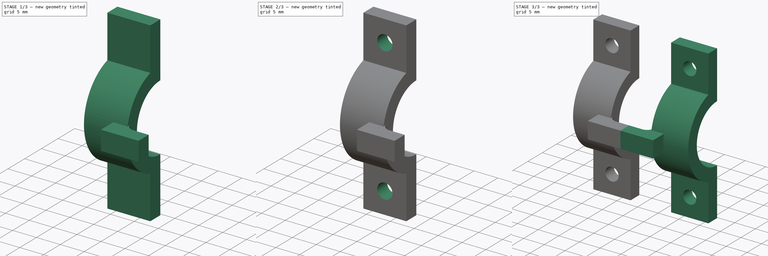
[diagram: build sequence overview — one tinted view per stage of 3, left to right]
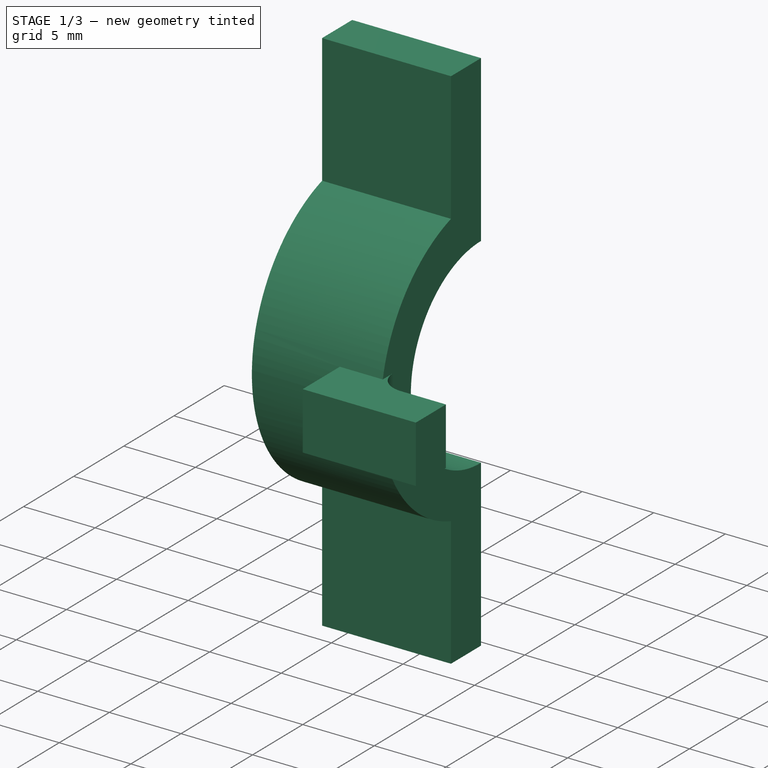
[diagram: stage 1 of 3 — iso view after this stage's code; geometry added in this stage tinted green]
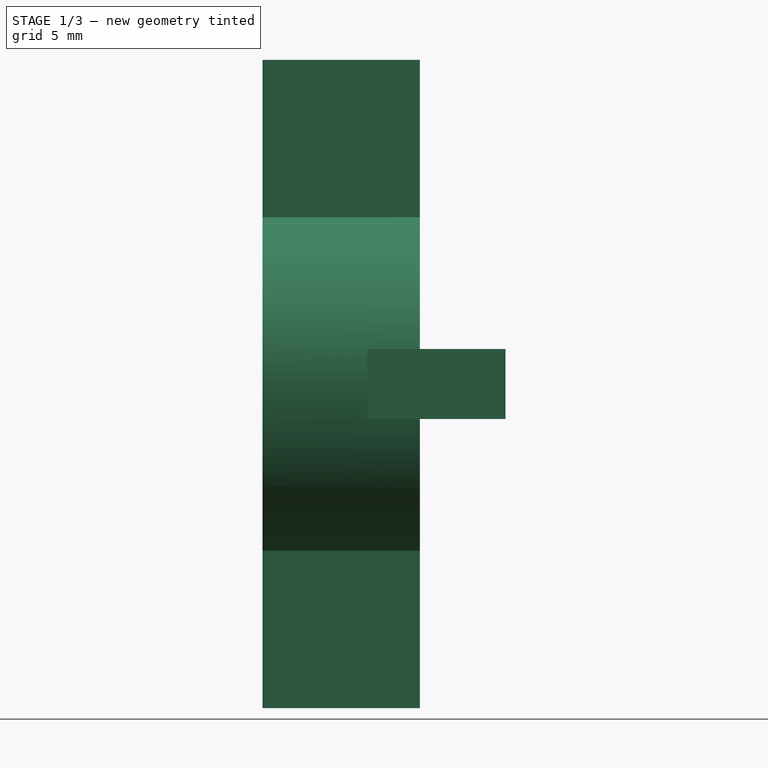
[diagram: stage 1 of 3 — front view after this stage's code; geometry added in this stage tinted green]
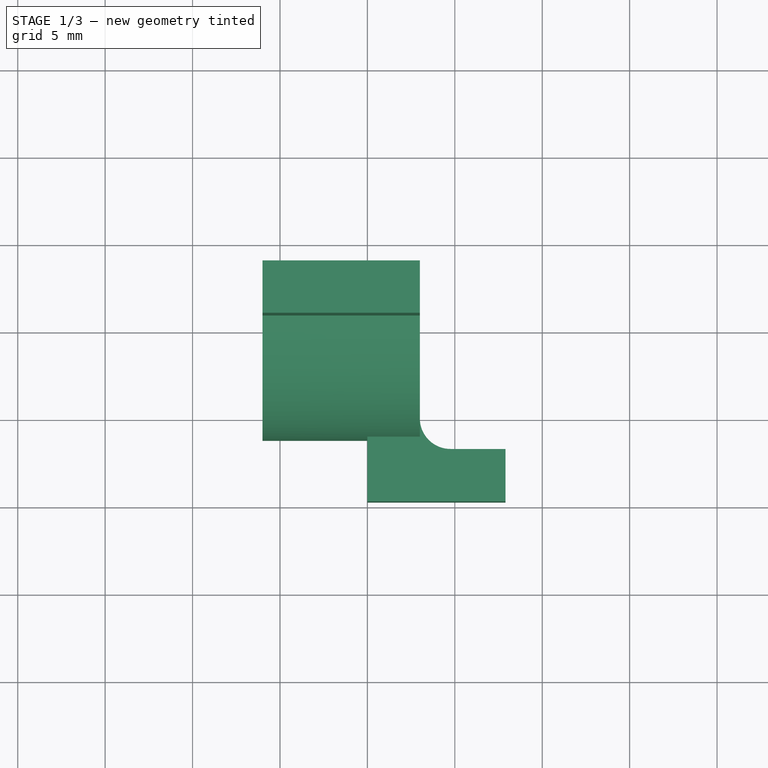
[diagram: stage 1 of 3 — top view after this stage's code; geometry added in this stage tinted green]
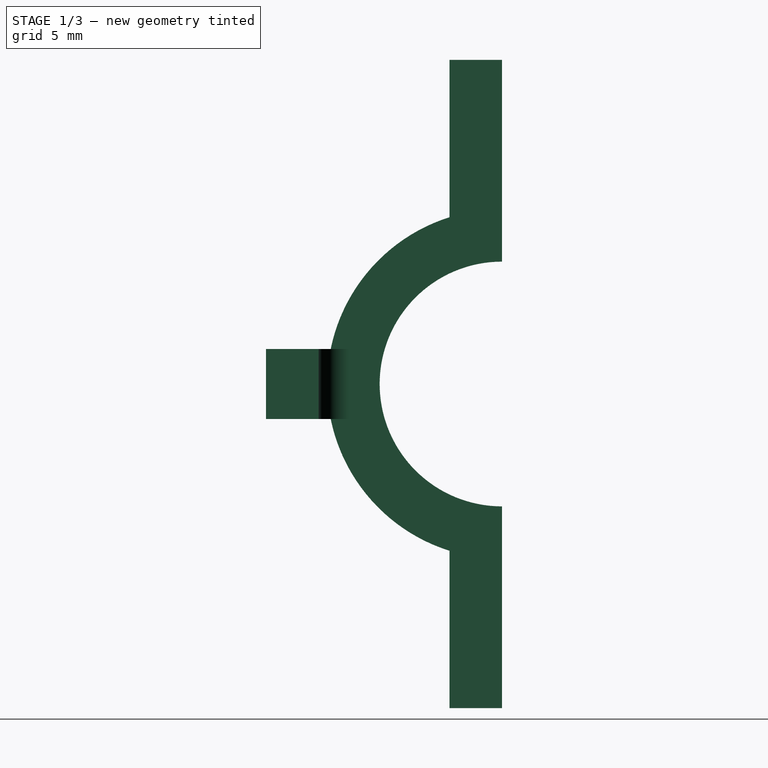
[diagram: stage 1 of 3 — right view after this stage's code; geometry added in this stage tinted green]
FCSTD DOCUMENT  (FreeCAD 0.14R3700 (Git))
Label: wire brace_lowerclamp
License: CC-BY 3.0
LicenseURL: http://creativecommons.org/licenses/by/3.0/
objects: Drawing::FeatureViewPart×4, Sketcher::SketchObject×3, PartDesign::Pad×2, PartDesign::Pocket×1, Part::Mirroring×1, Part::Fuse×1, Drawing::FeaturePage×1
note: 11 computed .brp shape members not serialized (recipe doc carries the construction recipe); baked Part::Feature solids carry a one-line shape summary decoded from their .brp

FEATURE [Sketcher::SketchObject] Sketch
  sketch-geometry (8):
    g0: ArcOfCircle CenterX=4.75 CenterY=4.75 CenterZ=0 NormalX=0 NormalY=0 NormalZ=1 Radius=1.75 StartAngle=3.14159 EndAngle=4.7124
    g1: LineSegment StartX=4.75001 StartY=3 StartZ=0 EndX=7.90001 EndY=3 EndZ=0
    g2: LineSegment StartX=3 StartY=6.5 StartZ=0 EndX=3 EndY=4.75 EndZ=0
    g3: LineSegment StartX=0 StartY=4.75 StartZ=0 EndX=0 EndY=6.5 EndZ=0
    g4: LineSegment StartX=7.90001 StartY=0 StartZ=0 EndX=0 EndY=0 EndZ=0
    g5: LineSegment StartX=0 StartY=0 StartZ=0 EndX=0 EndY=6.5 EndZ=0
    g6: LineSegment StartX=0 StartY=6.5 StartZ=0 EndX=3 EndY=6.5 EndZ=0
    g7: LineSegment StartX=7.90001 StartY=3 StartZ=0 EndX=7.90001 EndY=0 EndZ=0
  constraints (25):
    c: Tangent(g0,g1)
    c: Coincident(g0,g1)
    c: Horizontal(g1)
    c: Vertical(g2)
    c: Vertical(g3)
    c: DistanceY(g3,g0) = 0
    c: Coincident(g0,g2)
    c: DistanceY(g0,g0) = 0
    c: DistanceY(g2,g0) = -1.75
    c: DistanceX(g-1,g3) = 0
    c: Coincident(g4,g5)
    c: Horizontal(g4)
    c: Vertical(g5)
    c: Coincident(g3,g5)
    c: Horizontal(g6)
    c: Coincident(g3,g6)
    c: Coincident(g2,g6)
    c: DistanceX(g3,g2) = 3
    c: DistanceY(g0,g4) = -3
    c: Coincident(g4,g-1)
    c: Vertical(g7)
    c: Coincident(g4,g7)
    c: Coincident(g1,g7)
    c: DistanceX(g0,g1) = 3.15
    c: Radius(g0) = 1.75
FEATURE [PartDesign::Pad] Pad
  Length = 4
  Length2 = 20
  Sketch = -> Sketch
  Type = 0
FEATURE [Sketcher::SketchObject] Sketch002
  ExternalGeometry = -> [Pad]
  Placement = pos=(0,0,0) rot=(0.57735,-0.57735,-0.57735;2.0944rad)
  Support = -> Pad [Face8]
  sketch-geometry (8):
    g0: LineSegment StartX=-10.5 StartY=20.5394 StartZ=0 EndX=-10.5 EndY=11.5394 EndZ=0
    g1: LineSegment StartX=-10.5 StartY=-16.5394 StartZ=0 EndX=-13.5 EndY=-16.5394 EndZ=0
    g2: LineSegment StartX=-13.5 StartY=20.5394 StartZ=0 EndX=-13.5 EndY=9 EndZ=0
    g3: LineSegment StartX=-13.5 StartY=20.5394 StartZ=0 EndX=-10.5 EndY=20.5394 EndZ=0
    g4: ArcOfCircle CenterX=-13.5 CenterY=2 CenterZ=0 NormalX=0 NormalY=0 NormalZ=1 Radius=10 StartAngle=5.01708 EndAngle=7.54929
    g5: ArcOfCircle CenterX=-13.5 CenterY=2 CenterZ=0 NormalX=0 NormalY=0 NormalZ=1 Radius=7 StartAngle=4.71239 EndAngle=7.85398
    g6: LineSegment StartX=-10.5 StartY=-7.53939 StartZ=0 EndX=-10.5 EndY=-16.5394 EndZ=0
    g7: LineSegment StartX=-13.5 StartY=-5 StartZ=0 EndX=-13.5 EndY=-16.5394 EndZ=0
  constraints (25):
    c: Coincident(g3,g0)
    c: Coincident(g6,g1)
    c: Horizontal(g1)
    c: Vertical(g0)
    c: Vertical(g2)
    c: Coincident(g3,g2)
    c: Coincident(g1,g7)
    c: Coincident(g4,g6)
    c: Coincident(g2,g5)
    c: Coincident(g7,g5)
    c: Tangent(g2,g7)
    c: PointOnObject(g4,g0)
    c: Vertical(g6)
    c: Equal(g3,g1)
    c: Radius(g5) = 7
    c: Radius(g4) = 10
    c: Coincident(g0,g4)
    c: DistanceY(g1,g4) = 9
    c: DistanceY(g0,g0) = 9
    c: Horizontal(g3)
    c: Coincident(g4,g5)
    c: DistanceX(g2,g0) = 3
    c: Tangent(g5,g-3)
    c: DistanceX(g4,g5) = 0
    c: DistanceY(g-1,g4) = 2
FEATURE [PartDesign::Pad] Pad001
  Length = 6
  Length2 = 3
  Sketch = -> Sketch002
  Type = 4
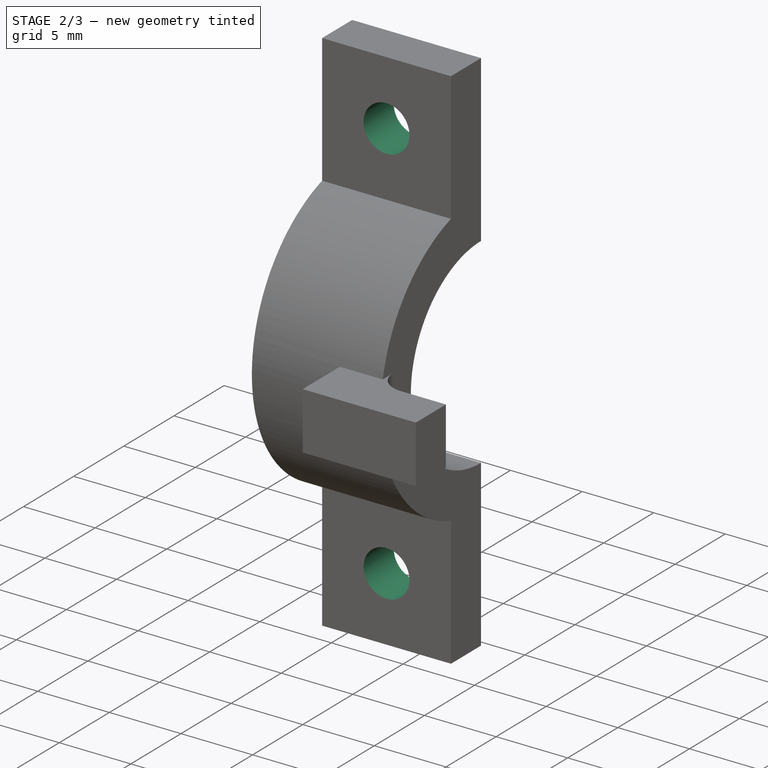
[diagram: stage 2 of 3 — iso view after this stage's code; geometry added in this stage tinted green]
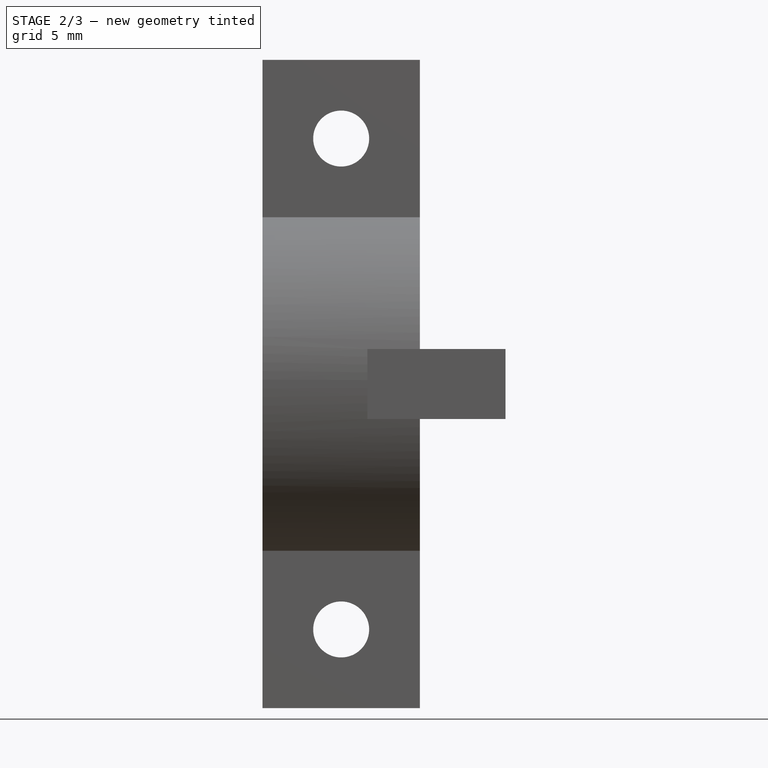
[diagram: stage 2 of 3 — front view after this stage's code; geometry added in this stage tinted green]
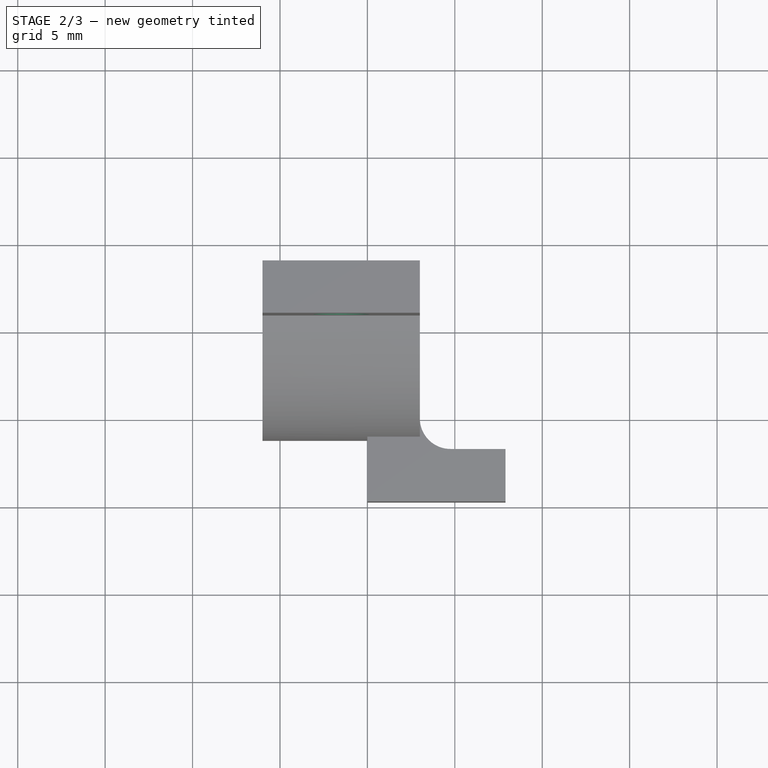
[diagram: stage 2 of 3 — top view after this stage's code; geometry added in this stage tinted green]
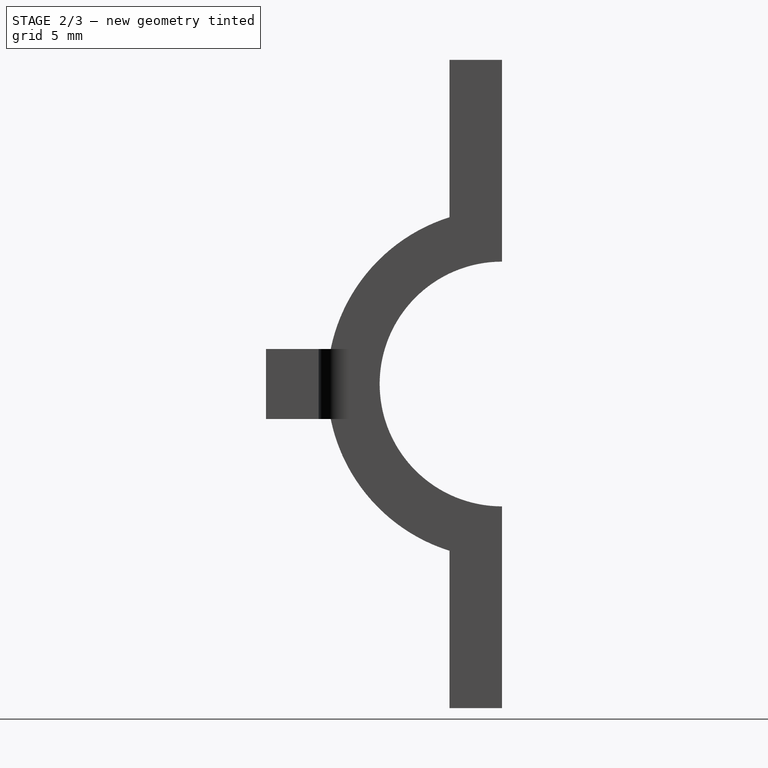
[diagram: stage 2 of 3 — right view after this stage's code; geometry added in this stage tinted green]
FEATURE [Sketcher::SketchObject] Sketch003
  ExternalGeometry = -> [Pad001]
  Placement = pos=(0,10.5,0) rot=(1,0,0;1.5708rad)
  Support = -> Pad001 [Face16]
  sketch-geometry (2):
    g0: Circle CenterX=-1.5 CenterY=-12.0394 CenterZ=0 NormalX=0 NormalY=0 NormalZ=1 Radius=1.6
    g1: Circle CenterX=-1.5 CenterY=16.0394 CenterZ=0 NormalX=0 NormalY=0 NormalZ=1 Radius=1.6
  constraints (6):
    c: DistanceX(g1,g-3) = 4.5
    c: DistanceY(g1,g-3) = 4.5
    c: DistanceY(g-4,g0) = 4.5
    c: DistanceX(g-4,g0) = 4.5
    c: Radius(g1) = 1.6
    c: Equal(g1,g0)
FEATURE [PartDesign::Pocket] Pocket
  Length = 5
  Sketch = -> Sketch003
  Type = 0
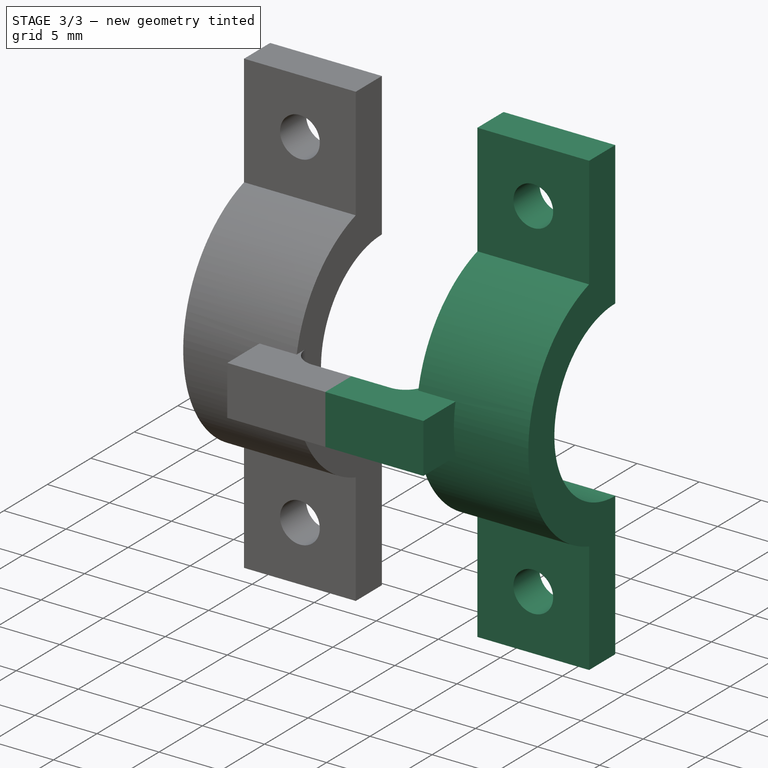
[diagram: stage 3 of 3 — iso view after this stage's code; geometry added in this stage tinted green]
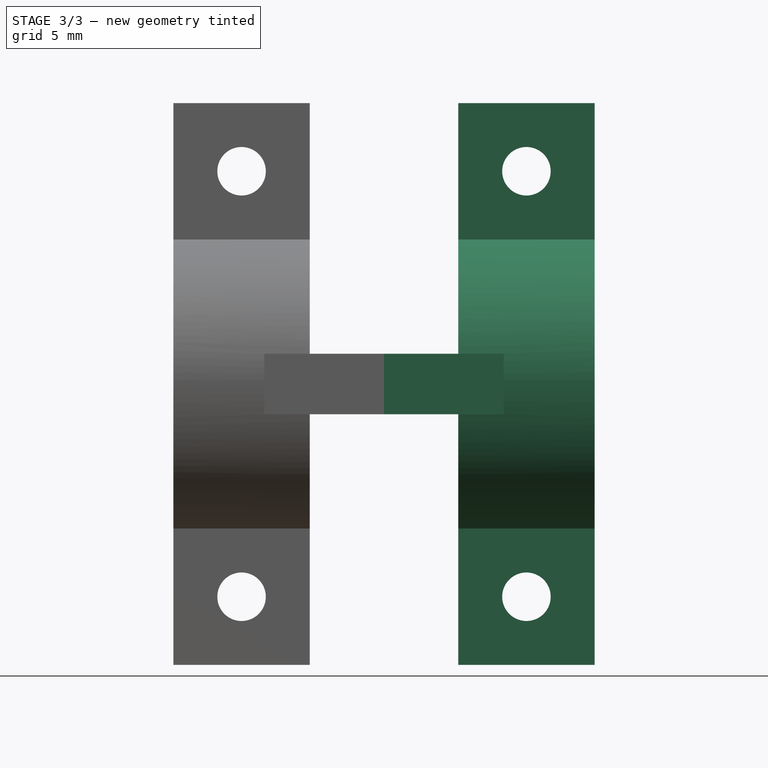
[diagram: stage 3 of 3 — front view after this stage's code; geometry added in this stage tinted green]
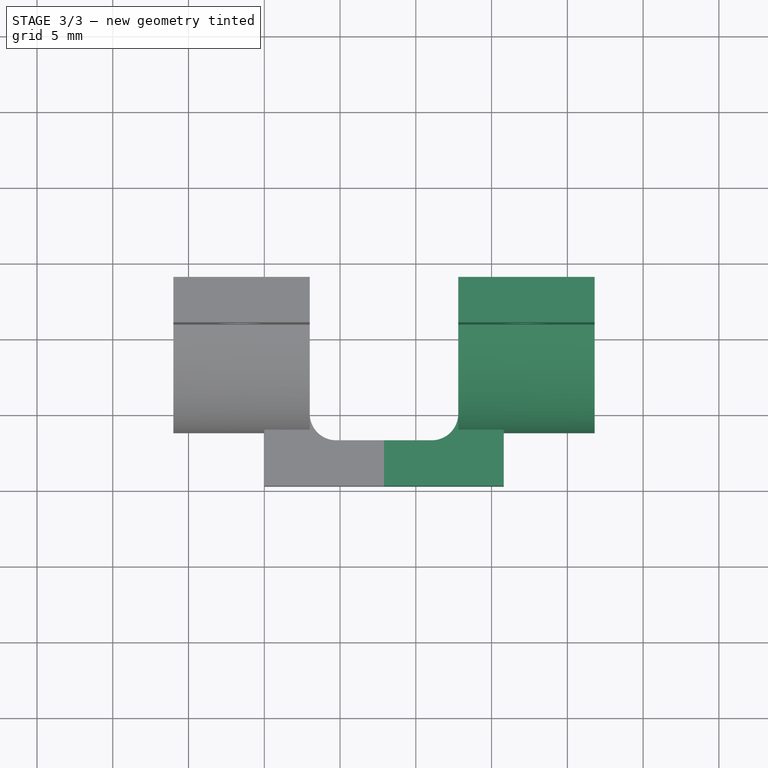
[diagram: stage 3 of 3 — top view after this stage's code; geometry added in this stage tinted green]
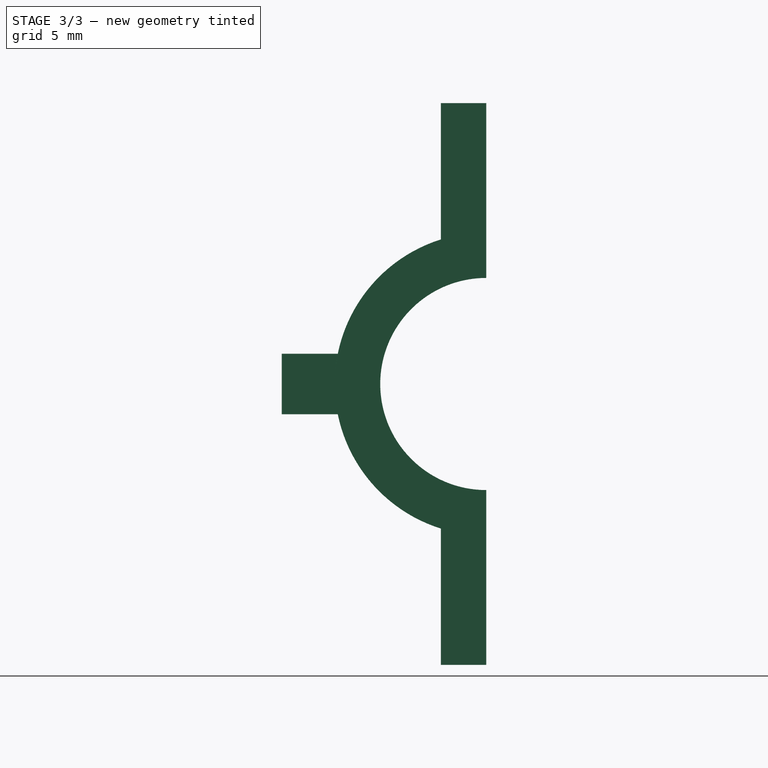
[diagram: stage 3 of 3 — right view after this stage's code; geometry added in this stage tinted green]
FEATURE [Part::Mirroring] Part__Mirroring  label="Pocket (Mirror #1)"
  Base = (0,0,0)
  Normal = (1,0,0)
  Placement = pos=(15.8,0,0) rot=(0,0,1;0rad)
  Source = -> Pocket
FEATURE [Part::Fuse] Fusion
  Base = -> Pocket
  Tool = -> Part__Mirroring
FEATURE [Drawing::FeatureViewPart] Ortho  label="Ortho_0_0"
  Direction = (1,0,0)
  HiddenWidth = 0.15
  LineWidth = 0.35
  Rotation = -90
  Scale = 3
  ShowHiddenLines = false
  ShowSmoothLines = false
  Source = -> Fusion
  Tolerance = 0.05
  ViewResult = <g id="Ortho_0_0"\n   transform="rotate(-90,150.8,209.927) translate(150.8,209.927) scale(3,3)"\n  >\n<g   stroke="rgb(0, 0, 0)"\n   stroke-width="0.116667"\n   stroke-linecap="butt"\n   stroke-linejoin="miter"\n   fill="none"\n   transform="scale(1,-1)"\n  >\n<path d="M4 -3.70204 A10 10 0 0 0 11.5394 -10.5" /><path d="M-7.53939 -10.5 A10 10 0 0 0 4.01901e-014 -3.70204" /><path id= "3" d=" M 0 0 L 0 -3.70204 " />\n<path id= "4" d=" M 4 0 L 4 -3.70204 " />\n<path id= "5" d=" M 0 0 L 4 0 " />\n<path d="M-7.53939 -10.5 A10 10 0 0 0 11.5394 -10.5" /><path id= "7" d=" M -7.53939 -10.5 L -16.5394 -10.5 " />\n<path id= "8" d=" M -16.5394 -10.5 L -16.5394 -13.5 " />\n<path id= "9" d=" M -5 -13.5 L -16.5394 -13.5 " />\n<path d="M-5 -13.5 A7 7 0 0 0 9 -13.5" /><path id= "11" d=" M 20.5394 -10.5 L 11.5394 -10.5 " />\n<path id= "12" d=" M 20.5394 -13.5 L 20.5394 -10.5 " />\n<path id= "13" d=" M 20.5394 -13.5 L 9 -13.5 " />\n</g>\n</g>
  X = 150.8
  Y = 209.927
FEATURE [Drawing::FeatureViewPart] Ortho002  label="Ortho_0_1"
  Direction = (0,0,1)
  HiddenWidth = 0.15
  LineWidth = 0.35
  Rotation = 90
  Scale = 3
  ShowHiddenLines = false
  ShowSmoothLines = false
  Source = -> Fusion
  Tolerance = 0.05
  ViewResult = <blob: 2414 chars omitted>
  X = 150.8
  Y = 55.4545
FEATURE [Drawing::FeatureViewPart] Ortho003  label="Ortho_-1_0"
  Direction = (0,-1,0)
  HiddenWidth = 0.15
  LineWidth = 0.35
  Rotation = 180
  Scale = 3
  ShowHiddenLines = false
  ShowSmoothLines = false
  Source = -> Fusion
  Tolerance = 0.05
  ViewResult = <blob: 3807 chars omitted>
  X = 56.7
  Y = 209.927
FEATURE [Drawing::FeatureViewPart] Ortho004  label="Ortho_-1_1"
  Direction = (0.57735,-0.57735,0.57735)
  HiddenWidth = 0.15
  LineWidth = 0.35
  Rotation = -120
  Scale = 3
  ShowHiddenLines = false
  ShowSmoothLines = false
  Source = -> Fusion
  Tolerance = 0.05
  ViewResult = <blob: 5915 chars omitted>
  X = 49.3227
  Y = 82.6451
FEATURE [Drawing::FeaturePage] Page
  EditableTexts = AUTHOR NAME | CREATION DATE | SUPERVISOR NAME | CHECK DATE | SCALE | WEIGHT | NUMBER | SHEET | TITLE | SUBTITLE
  Group = -> [Ortho,Ortho002,Ortho003,Ortho004]
  Template = C:/Program Files/FreeCAD 0.14/data/Mod/Drawing/Templates/A3_Landscape.svg
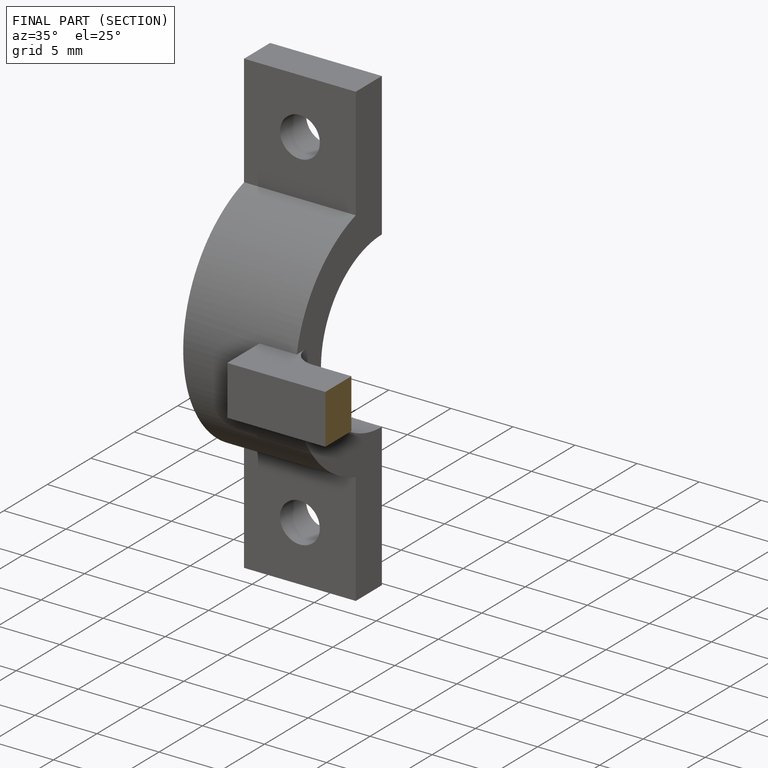
[diagram: finished part — half-section view (interior)]
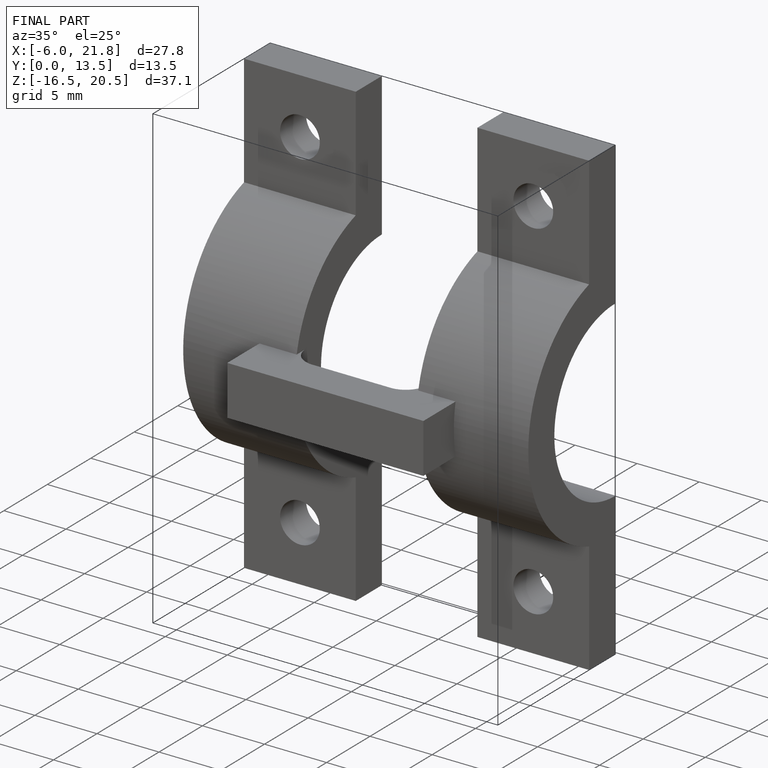
[diagram: finished part — iso view with bounding-box wireframe]
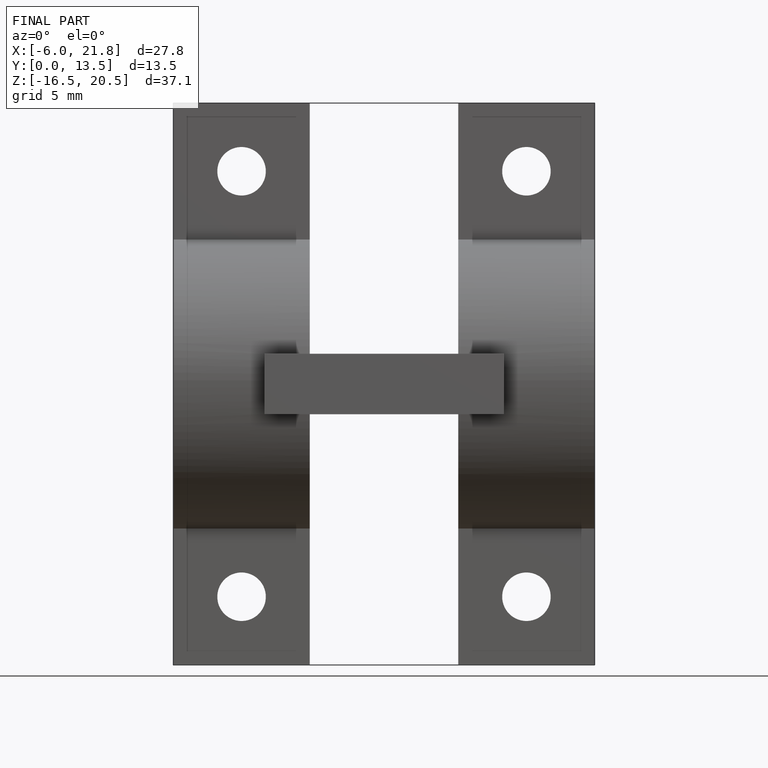
[diagram: finished part — front view with bounding-box wireframe]
